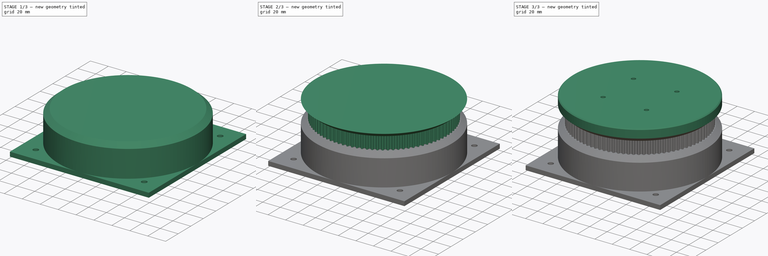
[diagram: build sequence overview — one tinted view per stage of 3, left to right]
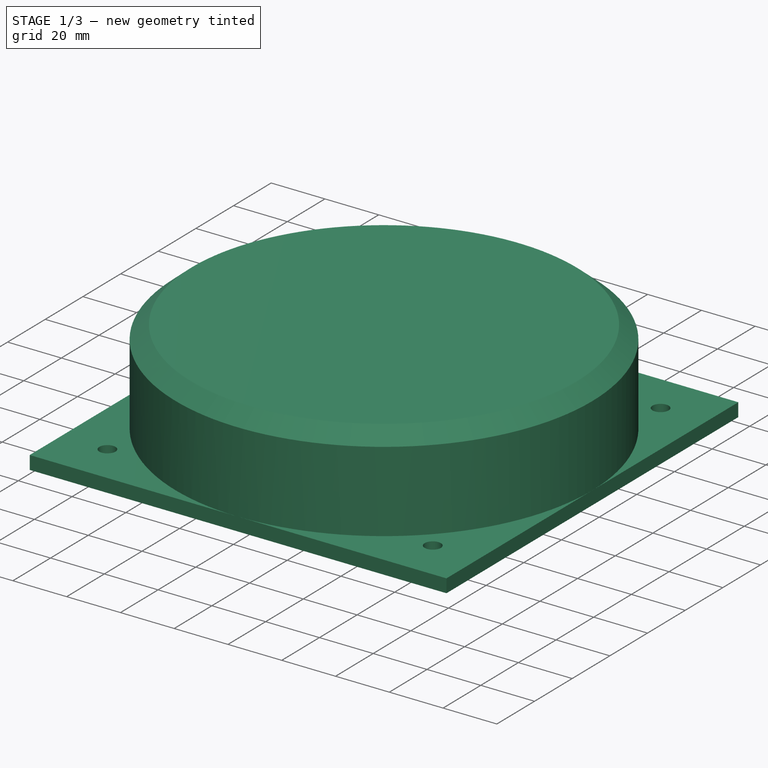
[diagram: stage 1 of 3 — iso view after this stage's code; geometry added in this stage tinted green]
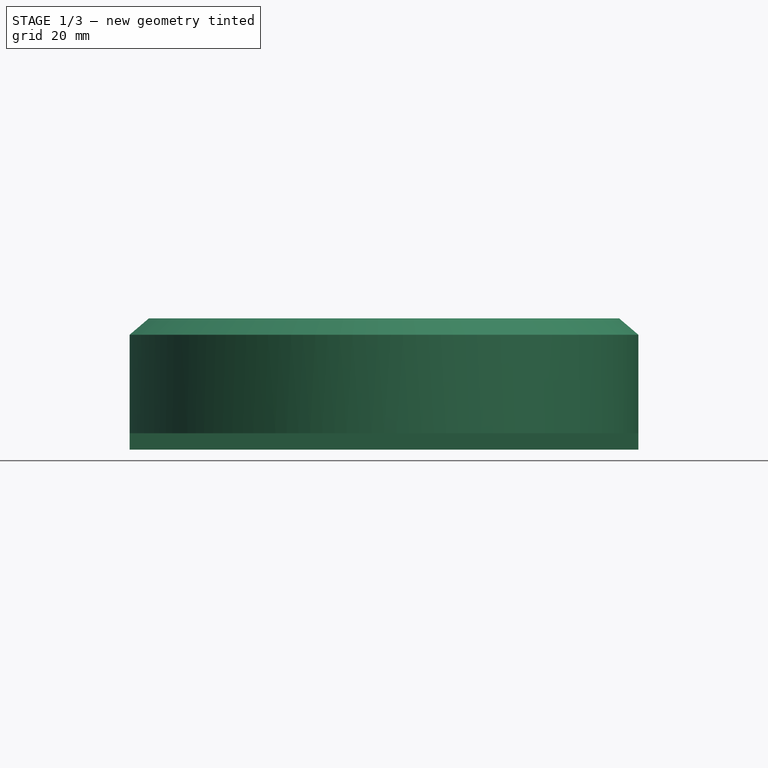
[diagram: stage 1 of 3 — front view after this stage's code; geometry added in this stage tinted green]
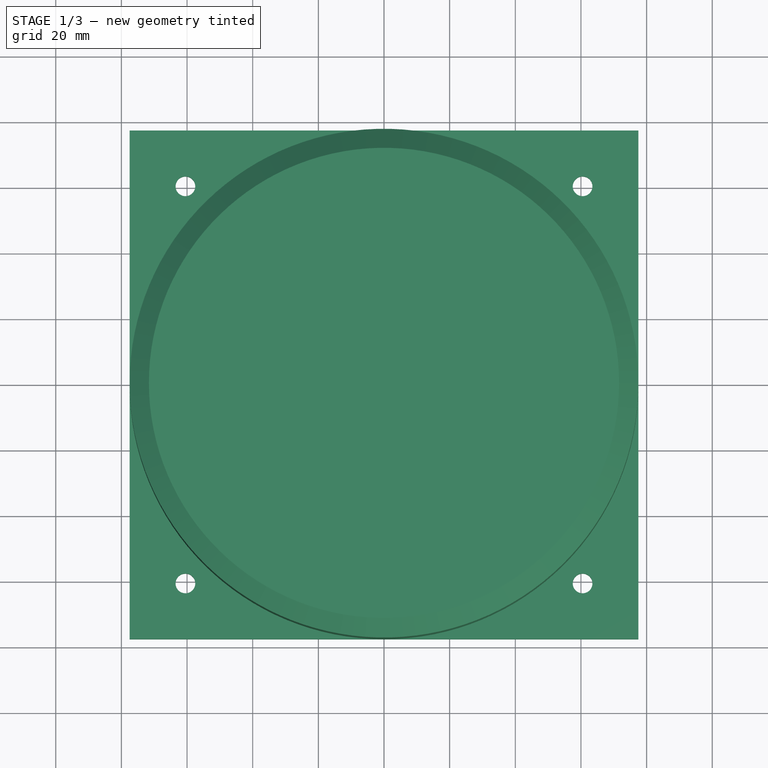
[diagram: stage 1 of 3 — top view after this stage's code; geometry added in this stage tinted green]
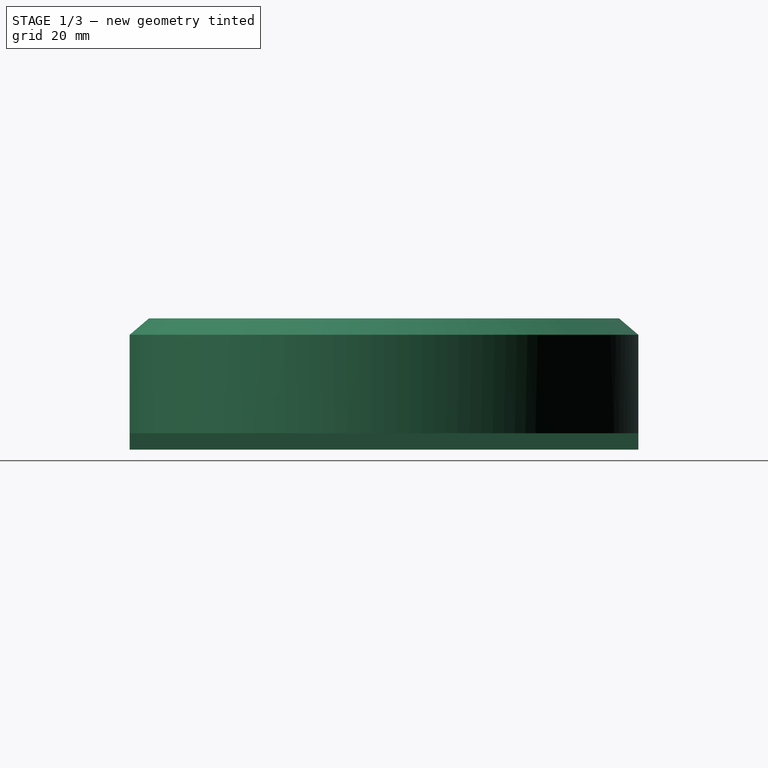
[diagram: stage 1 of 3 — right view after this stage's code; geometry added in this stage tinted green]
FCSTD DOCUMENT  (FreeCAD 1.0R39319 (Git))
Label: turntable
License: All rights reserved
LicenseURL: https://en.wikipedia.org/wiki/All_rights_reserved
objects: Sketcher::SketchObject×8, PartDesign::Pad×3, PartDesign::AdditiveLoft×2, Spreadsheet::Sheet×1, PartDesign::FeaturePython×1, PartDesign::Pocket×1, PartDesign::Chamfer×1, PartDesign::Body×1
note: 40 computed .brp shape members not serialized (recipe doc carries the construction recipe); baked Part::Feature solids carry a one-line shape summary decoded from their .brp

FEATURE [Sketcher::SketchObject] Sketch
  ArcFitTolerance = 1e-06
  AttachmentSupport = -> [XY_Plane]
  FullyConstrained = true
  MakeInternals = false
  MapMode = 5
  expr: Constraints[10] = <<p>>.mount_d / 2
  expr: Constraints[11] = <<p>>.mount_d / 2
  expr: Constraints[19] = <<p>>.mount_hole_diam
  expr: Constraints[20] = <<p>>.mount_hole_d
  expr: Constraints[21] = <<p>>.mount_hole_d
  expr: Constraints[22] = (<<p>>.mount_d - <<p>>.mount_hole_d) / 2
  expr: Constraints[23] = (<<p>>.mount_d - <<p>>.mount_hole_d) / 2
  expr: Constraints[8] = <<p>>.mount_d
  expr: Constraints[9] = <<p>>.mount_d
  sketch-geometry (8):
    g0: LineSegment StartX=-77.5 StartY=77.5 StartZ=0 EndX=-77.5 EndY=-77.5 EndZ=0
    g1: LineSegment StartX=-77.5 StartY=-77.5 StartZ=0 EndX=77.5 EndY=-77.5 EndZ=0
    g2: LineSegment StartX=77.5 StartY=-77.5 StartZ=0 EndX=77.5 EndY=77.5 EndZ=0
    g3: LineSegment StartX=77.5 StartY=77.5 StartZ=0 EndX=-77.5 EndY=77.5 EndZ=0
    g4: Circle CenterX=-60.5 CenterY=60.5 CenterZ=0 NormalX=0 NormalY=0 NormalZ=1 AngleXU=0 Radius=3
    g5: Circle CenterX=60.5 CenterY=60.5 CenterZ=0 NormalX=0 NormalY=0 NormalZ=1 AngleXU=0 Radius=3
    g6: Circle CenterX=-60.5 CenterY=-60.5 CenterZ=0 NormalX=0 NormalY=0 NormalZ=1 AngleXU=0 Radius=3
    g7: Circle CenterX=60.5 CenterY=-60.5 CenterZ=0 NormalX=0 NormalY=0 NormalZ=1 AngleXU=0 Radius=3
  constraints (24):
    c: Coincident(g0,g1)
    c: Coincident(g1,g2)
    c: Coincident(g2,g3)
    c: Coincident(g3,g0)
    c: Vertical(g0)
    c: Vertical(g2)
    c: Horizontal(g1)
    c: Horizontal(g3)
    c: DistanceX(g1,g1) = 155
    c: DistanceY(g2,g2) = 155
    c: DistanceY(g-1,g0) = 77.5
    c: DistanceX(g0,g-1) = 77.5
    c: Equal(g4,g6)
    c: Equal(g6,g7)
    c: Equal(g7,g5)
    c: DistanceY(g7,g6) = 0
    c: DistanceY(g5,g4) = 0
    c: DistanceX(g5,g7) = 0
    c: DistanceX(g6,g4) = 0
    c: Diameter(g5) = 6
    c: DistanceX(g6,g7) = 121
    c: DistanceY(g7,g5) = 121
    c: DistanceY(g4,g0) = 17
    c: DistanceX(g0,g4) = 17
FEATURE [Spreadsheet::Sheet] Spreadsheet  label="p"
  cells = A1='mount_d; B1(mount_d)=155; A2='mount_hole_d; B2(mount_hole_d)=121; C2=121; A3='mount_hole_diam; B3(mount_hole_diam)=6; E3='gear height should be 1.68" height; A4='mount_h; B4(mount_h)=5; A5='pulley_guard_h; B5(pulley_guard_h)=30; A6='pulley_h; B6(pulley_h)=15.1; A7='pulley_taper_h; B7(pulley_taper_h)=5; A8='num_teeth; B8(num_teeth)=90; A9='pulley_diam; B9(pulley_diam)==B8 * 5 / pi; A10='pulley_top_level; B10(pulley_top_level)==B4 + B5 + B6 + B7; C10='pulley intermediate; A11='top_hole_spacing; B11(top_hole_spacing)=50; A12='top_hole_diam; B12(top_hole_diam)=5; A13='top_hole_depth; B13(top_hole_depth)=5; A14='top_pad; B14(top_pad)=10
FEATURE [PartDesign::Pad] Pad  label="base_pad"
  Direction = (0,0,1)
  Length = 5
  Length2 = 10
  Profile = -> Sketch
  ReferenceAxis = -> Sketch [N_Axis]
  Refine = true
  Suppressed = false
  Type = 0
  expr: Length = <<p>>.mount_h
FEATURE [Sketcher::SketchObject] Sketch001
  ArcFitTolerance = 1e-06
  AttachmentSupport = -> [Pad]
  FullyConstrained = true
  MakeInternals = false
  MapMode = 5
  Placement = pos=(0,0,5) rot=(0,0,1;0rad)
  expr: Constraints[1] = <<p>>.mount_d
  sketch-geometry (1):
    g0: Circle CenterX=0 CenterY=0 CenterZ=0 NormalX=0 NormalY=0 NormalZ=1 AngleXU=0 Radius=77.5
  constraints (2):
    c: Coincident(g0,g-1)
    c: Diameter(g0) = 155
FEATURE [PartDesign::Pad] Pad001  label="pully_guard_pad"
  AttacherType = Attacher::AttachEngine3D
  BaseFeature = -> Pad
  Direction = (0,0,1)
  Length = 30
  Length2 = 10
  Profile = -> Sketch001
  ReferenceAxis = -> Sketch001 [N_Axis]
  Refine = true
  Suppressed = false
  Type = 0
  expr: Length = <<p>>.pulley_guard_h
FEATURE [Sketcher::SketchObject] Sketch002
  ArcFitTolerance = 1e-06
  AttachmentSupport = -> [Pad001]
  FullyConstrained = true
  MakeInternals = false
  MapMode = 5
  Placement = pos=(0,0,35) rot=(0,0,1;0rad)
  expr: Constraints[1] = <<p>>.mount_d
  sketch-geometry (1):
    g0: Circle CenterX=0 CenterY=0 CenterZ=0 NormalX=0 NormalY=0 NormalZ=1 AngleXU=0 Radius=77.5
  constraints (2):
    c: Coincident(g0,g-1)
    c: Diameter(g0) = 155
FEATURE [Sketcher::SketchObject] Sketch003
  ArcFitTolerance = 1e-06
  AttachmentOffset = pos=(0,0,5) rot=(0,0,1;0rad)
  AttachmentSupport = -> [Pad001]
  FullyConstrained = true
  MakeInternals = false
  MapMode = 5
  Placement = pos=(0,0,40) rot=(0,0,1;0rad)
  expr: .AttachmentOffset.Base.z = <<p>>.pulley_taper_h
  expr: Constraints[1] = <<p>>.pulley_diam
  sketch-geometry (1):
    g0: Circle CenterX=0 CenterY=0 CenterZ=0 NormalX=0 NormalY=0 NormalZ=1 AngleXU=0 Radius=71.6197
  constraints (2):
    c: Coincident(g0,g-1)
    c: Diameter(g0) = 143.239
FEATURE [PartDesign::AdditiveLoft] AdditiveLoft  label="bottom_pulley_taper"
  BaseFeature = -> Pad001
  Closed = false
  Profile = -> Sketch002
  Refine = true
  Ruled = false
  Sections = -> [Sketch003]
  Suppressed = false
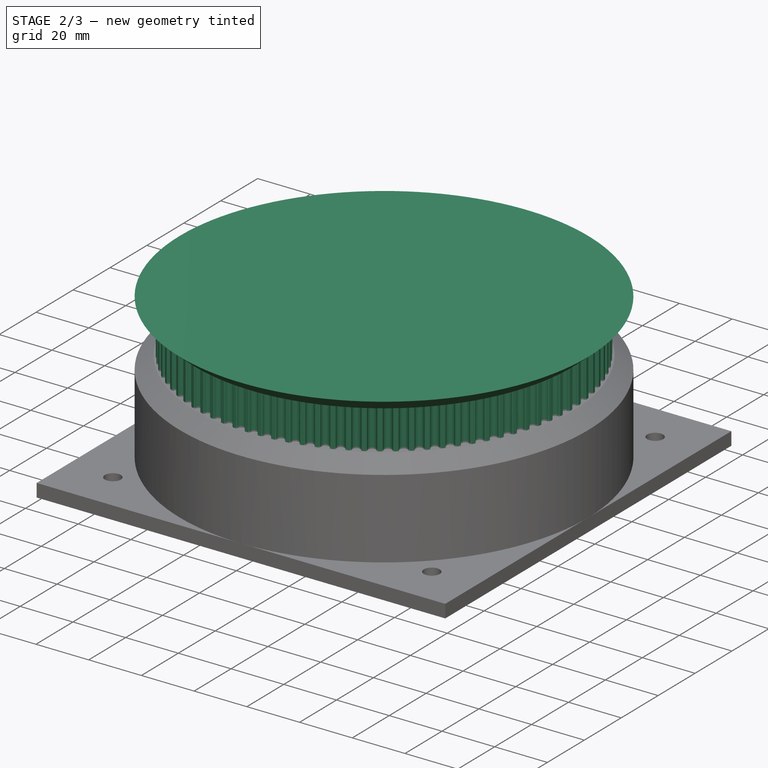
[diagram: stage 2 of 3 — iso view after this stage's code; geometry added in this stage tinted green]
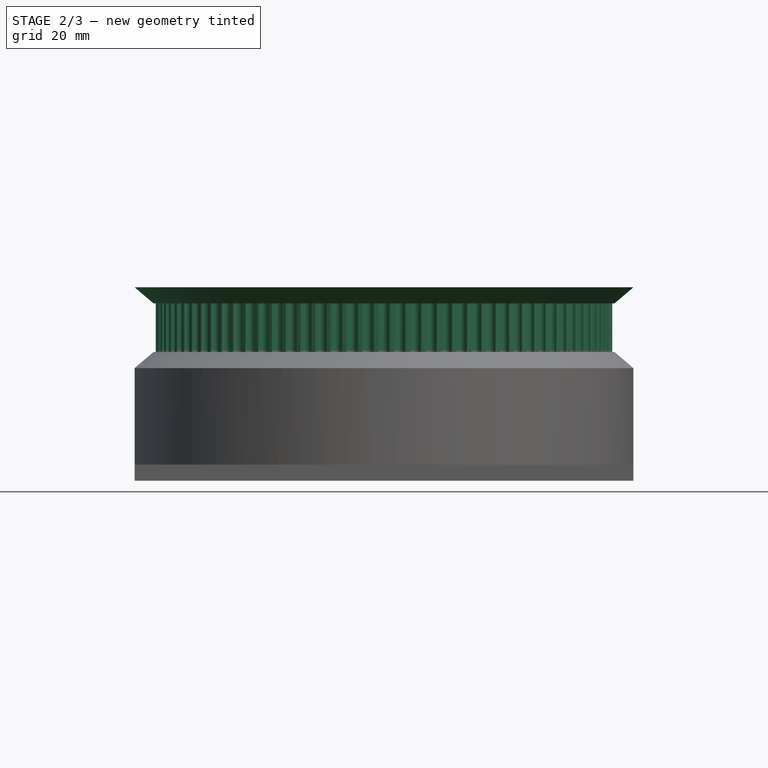
[diagram: stage 2 of 3 — front view after this stage's code; geometry added in this stage tinted green]
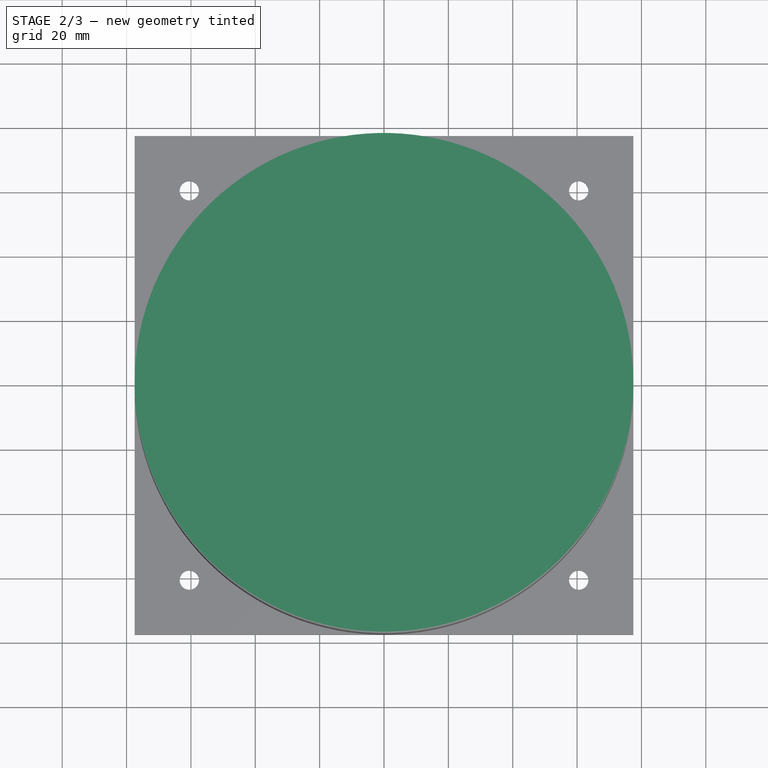
[diagram: stage 2 of 3 — top view after this stage's code; geometry added in this stage tinted green]
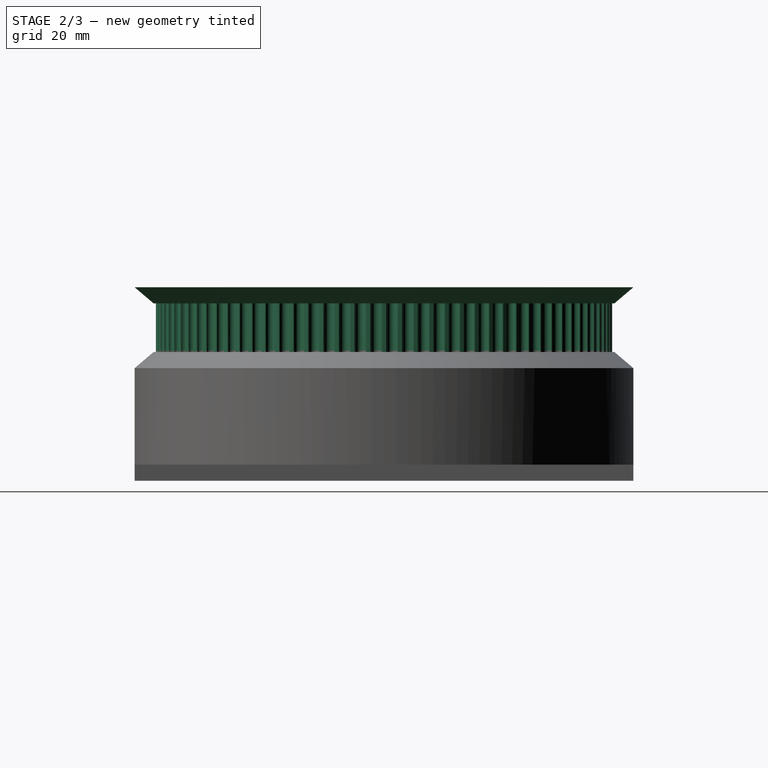
[diagram: stage 2 of 3 — right view after this stage's code; geometry added in this stage tinted green]
FEATURE [PartDesign::FeaturePython] TimingGear  label="htd5 pulley"  # WARN: FeaturePython — macro-defined, semantics opaque (R4)
  AttacherType = Attacher::AttachEngine3D
  AttachmentSupport = -> [AdditiveLoft]
  BaseFeature = -> AdditiveLoft
  Placement = pos=(0,0,40) rot=(1,0,1;0rad)
  Suppressed = false
  h = 2.06
  height = 15.1
  num_teeth = 90
  offset = 0
  pitch = 5
  r0 = 1.49
  r1 = 1.49
  rs = 0.43
  type = 5
  u = 0.5715
  version = 1.3.0
  expr: .Placement.Base.z = <<p>>.pulley_guard_h + <<p>>.pulley_taper_h + <<p>>.mount_h
  expr: height = <<p>>.pulley_h
  expr: num_teeth = <<p>>.num_teeth
FEATURE [Sketcher::SketchObject] Sketch004
  ArcFitTolerance = 1e-06
  AttachmentOffset = pos=(0,0,55.1) rot=(0,0,1;0rad)
  AttachmentSupport = -> [XY_Plane]
  FullyConstrained = true
  MakeInternals = false
  MapMode = 5
  Placement = pos=(0,0,55.1) rot=(0,0,1;0rad)
  expr: .AttachmentOffset.Base.z = <<p>>.pulley_top_level
  expr: Constraints[1] = <<p>>.pulley_diam
  sketch-geometry (1):
    g0: Circle CenterX=0 CenterY=0 CenterZ=0 NormalX=0 NormalY=0 NormalZ=1 AngleXU=0 Radius=71.6197
  constraints (2):
    c: Coincident(g0,g-1)
    c: Diameter(g0) = 143.239
FEATURE [Sketcher::SketchObject] Sketch005
  ArcFitTolerance = 1e-06
  AttachmentOffset = pos=(0,0,60.1) rot=(0,0,1;0rad)
  AttachmentSupport = -> [XY_Plane]
  FullyConstrained = true
  MakeInternals = false
  MapMode = 5
  Placement = pos=(0,0,60.1) rot=(0,0,1;0rad)
  expr: .AttachmentOffset.Base.z = <<p>>.pulley_top_level + <<p>>.pulley_taper_h
  expr: Constraints[1] = <<p>>.mount_d
  sketch-geometry (1):
    g0: Circle CenterX=0 CenterY=0 CenterZ=0 NormalX=0 NormalY=0 NormalZ=1 AngleXU=0 Radius=77.5
  constraints (2):
    c: Coincident(g0,g-1)
    c: Diameter(g0) = 155
FEATURE [PartDesign::AdditiveLoft] AdditiveLoft001  label="top_pulley_taper"
  BaseFeature = -> TimingGear
  Closed = false
  Placement = pos=(0,0,40) rot=(1,0,1;0rad)
  Profile = -> Sketch004
  Refine = true
  Ruled = false
  Sections = -> [Sketch005]
  Suppressed = false
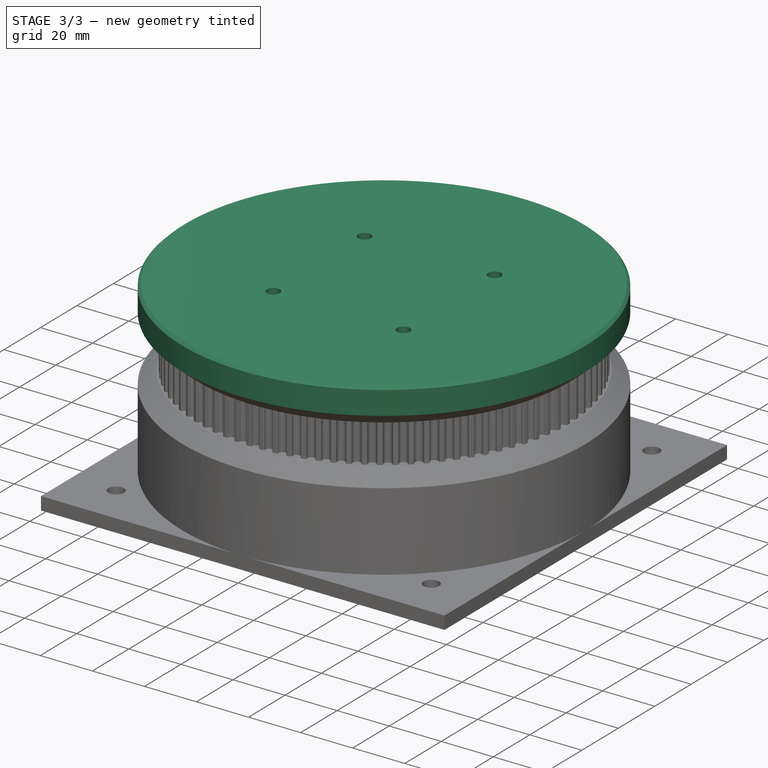
[diagram: stage 3 of 3 — iso view after this stage's code; geometry added in this stage tinted green]
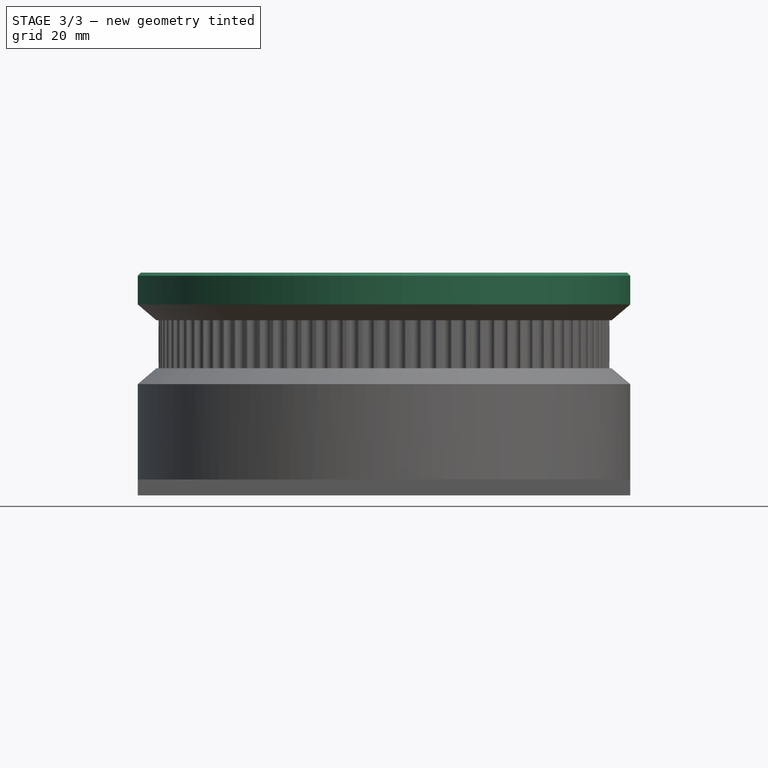
[diagram: stage 3 of 3 — front view after this stage's code; geometry added in this stage tinted green]
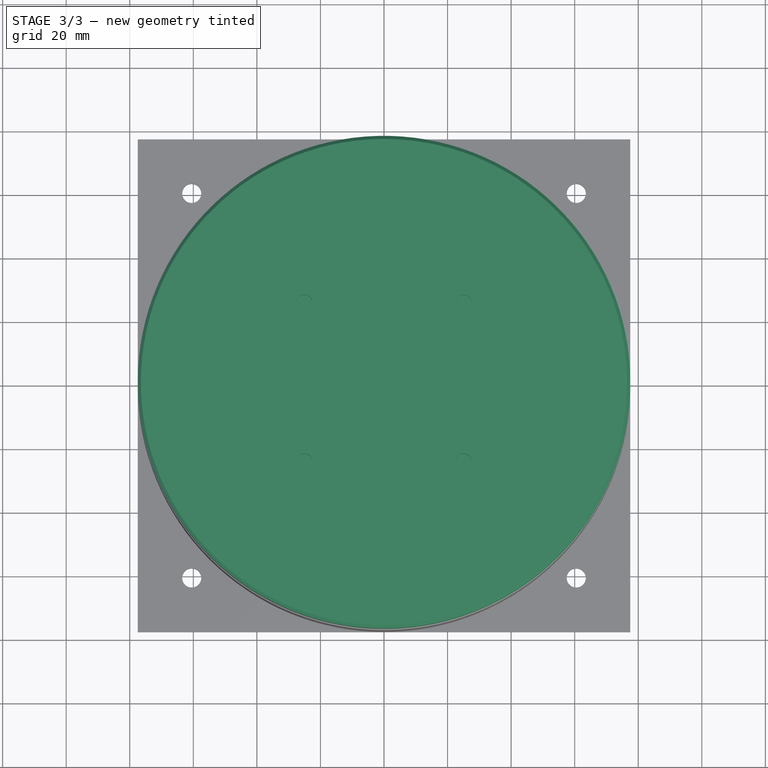
[diagram: stage 3 of 3 — top view after this stage's code; geometry added in this stage tinted green]
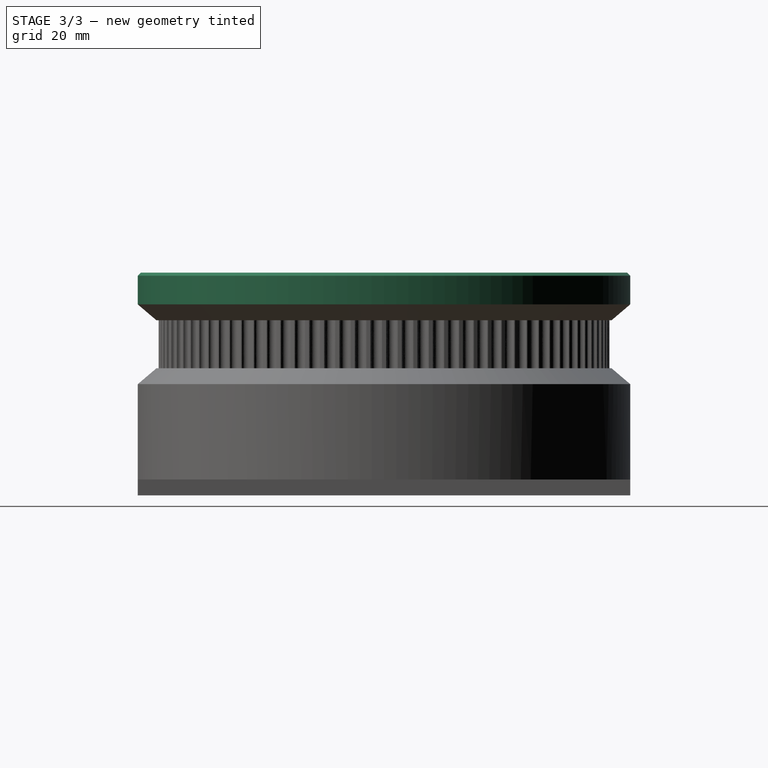
[diagram: stage 3 of 3 — right view after this stage's code; geometry added in this stage tinted green]
FEATURE [Sketcher::SketchObject] Sketch006
  ArcFitTolerance = 1e-06
  AttachmentOffset = pos=(0,0,60.1) rot=(0,0,1;0rad)
  AttachmentSupport = -> [XY_Plane]
  FullyConstrained = true
  MakeInternals = false
  MapMode = 5
  Placement = pos=(0,0,60.1) rot=(0,0,1;0rad)
  expr: .AttachmentOffset.Base.z = <<p>>.pulley_top_level + <<p>>.pulley_taper_h
  expr: Constraints[1] = <<p>>.mount_d
  sketch-geometry (1):
    g0: Circle CenterX=0 CenterY=0 CenterZ=0 NormalX=0 NormalY=0 NormalZ=1 AngleXU=0 Radius=77.5
  constraints (2):
    c: Coincident(g0,g-1)
    c: Diameter(g0) = 155
FEATURE [PartDesign::Pad] Pad002  label="top_guard_pad"
  BaseFeature = -> AdditiveLoft001
  Direction = (0,0,1)
  Length = 10
  Length2 = 10
  Placement = pos=(0,0,40) rot=(1,0,1;0rad)
  Profile = -> Sketch006
  ReferenceAxis = -> Sketch006 [N_Axis]
  Refine = true
  Suppressed = false
  Type = 0
  expr: Length = <<p>>.top_pad
FEATURE [Sketcher::SketchObject] Sketch007
  ArcFitTolerance = 1e-06
  AttachmentOffset = pos=(0,0,70.1) rot=(0,0,1;0rad)
  AttachmentSupport = -> [XY_Plane]
  FullyConstrained = false
  MakeInternals = false
  MapMode = 5
  Placement = pos=(0,0,70.1) rot=(0,0,1;0rad)
  expr: .AttachmentOffset.Base.z = <<p>>.pulley_top_level + <<p>>.pulley_taper_h + <<p>>.top_pad
  expr: Constraints[4] = <<p>>.top_hole_spacing
  expr: Constraints[5] = <<p>>.top_hole_spacing
  expr: Constraints[9] = <<p>>.top_hole_diam
  sketch-geometry (4):
    g0: Circle CenterX=-25 CenterY=25 CenterZ=0 NormalX=0 NormalY=0 NormalZ=1 AngleXU=0 Radius=2.5
    g1: Circle CenterX=25 CenterY=25 CenterZ=0 NormalX=0 NormalY=0 NormalZ=1 AngleXU=0 Radius=2.5
    g2: Circle CenterX=-25 CenterY=-25 CenterZ=0 NormalX=0 NormalY=0 NormalZ=1 AngleXU=0 Radius=2.5
    g3: Circle CenterX=25 CenterY=-25 CenterZ=0 NormalX=0 NormalY=0 NormalZ=1 AngleXU=0 Radius=2.5
  constraints (10):
    c: DistanceY(g0,g1) = 0
    c: DistanceY(g2,g3) = 0
    c: DistanceX(g2,g0) = 0
    c: DistanceX(g3,g1) = 0
    c: DistanceX(g0,g1) = 50
    c: DistanceY(g2,g0) = 50
    c: Equal(g2,g0)
    c: Equal(g2,g1)
    c: Equal(g2,g3)
    c: Diameter(g2) = 5
FEATURE [PartDesign::Pocket] Pocket
  BaseFeature = -> Pad002
  Direction = (0,0,-1)
  Length = 5
  Length2 = 5
  Placement = pos=(0,0,40) rot=(1,0,1;0rad)
  Profile = -> Sketch007
  ReferenceAxis = -> Sketch007 [N_Axis]
  Refine = true
  Suppressed = false
  Type = 0
  expr: Length = <<p>>.top_hole_depth
FEATURE [PartDesign::Chamfer] Chamfer
  Angle = 45
  Base = -> Pocket [Edge1121]
  BaseFeature = -> Pocket
  ChamferType = 0
  FlipDirection = false
  Placement = pos=(0,0,40) rot=(1,0,1;0rad)
  Refine = true
  Size = 1
  Size2 = 1
  SupportTransform = false
  Suppressed = false
  UseAllEdges = false
FEATURE [PartDesign::Body] Body
  AllowCompound = false
  Group = -> [Sketch,Pad,Sketch001,Pad001,Sketch002,Sketch003,AdditiveLoft,TimingGear,Sketch004,Sketch005,AdditiveLoft001,Sketch006,Pad002,Sketch007,Pocket,Chamfer]
  Origin = -> Origin
  Tip = -> Chamfer
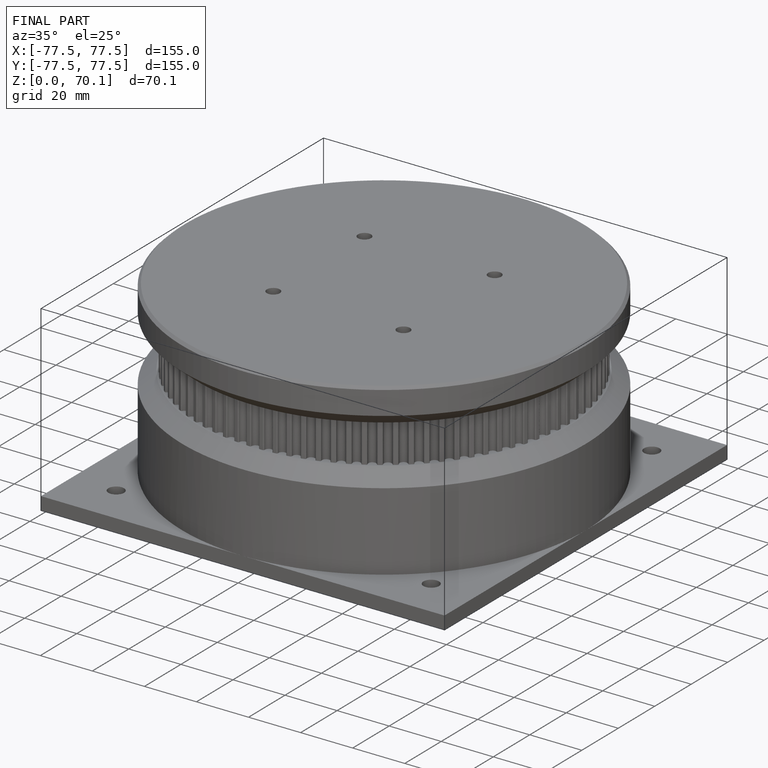
[diagram: finished part — iso view with bounding-box wireframe]
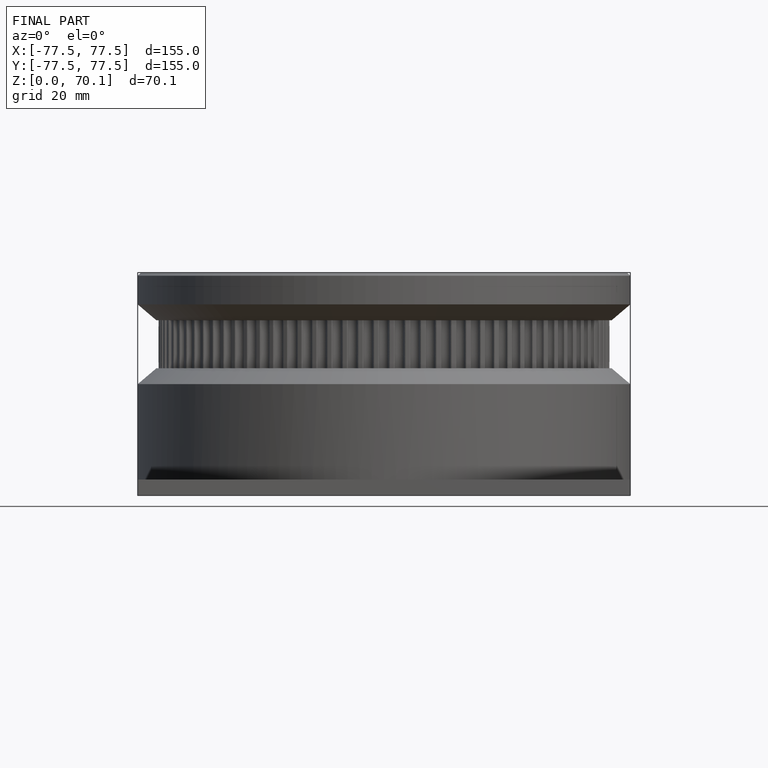
[diagram: finished part — front view with bounding-box wireframe]
